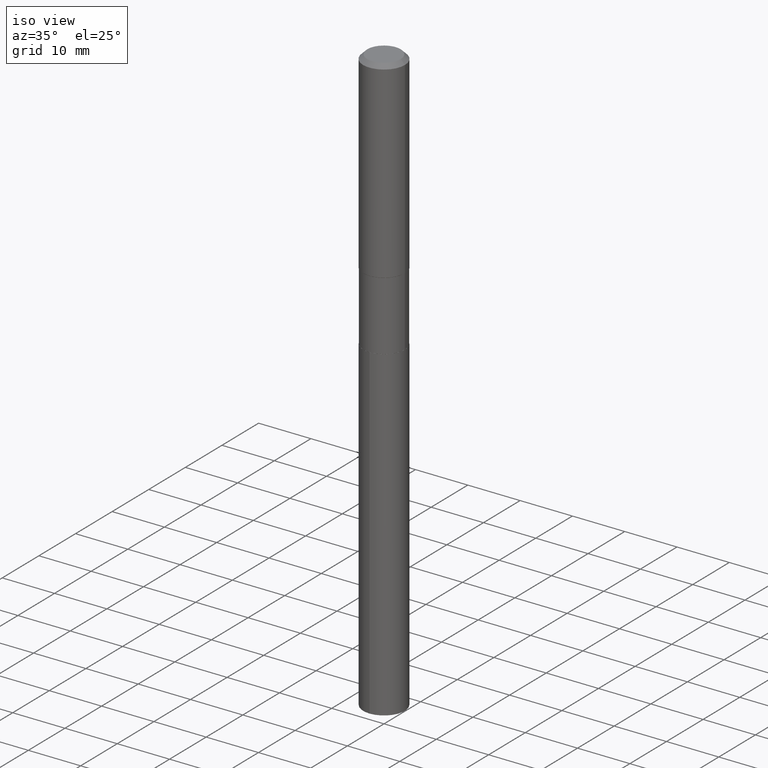
[diagram: clean part render]
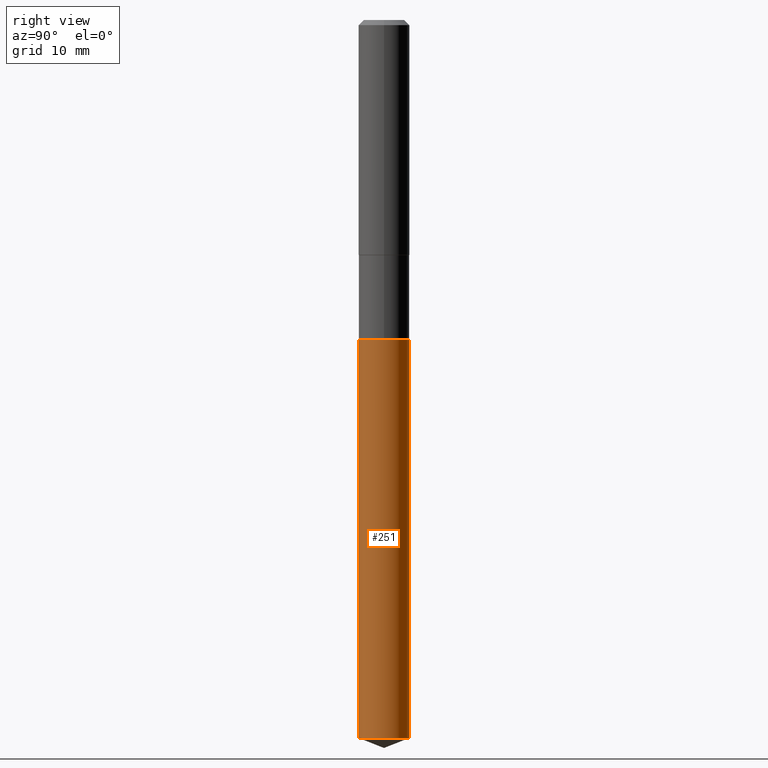
[diagram: tour spotlight — one face highlighted and labeled with its STEP entity id]
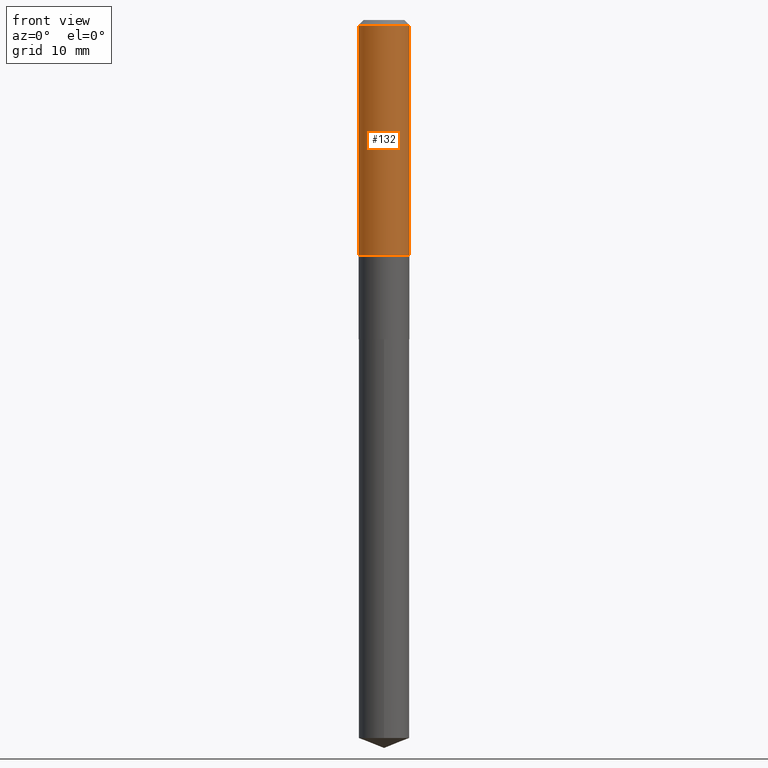
[diagram: tour spotlight — one face highlighted and labeled with its STEP entity id]
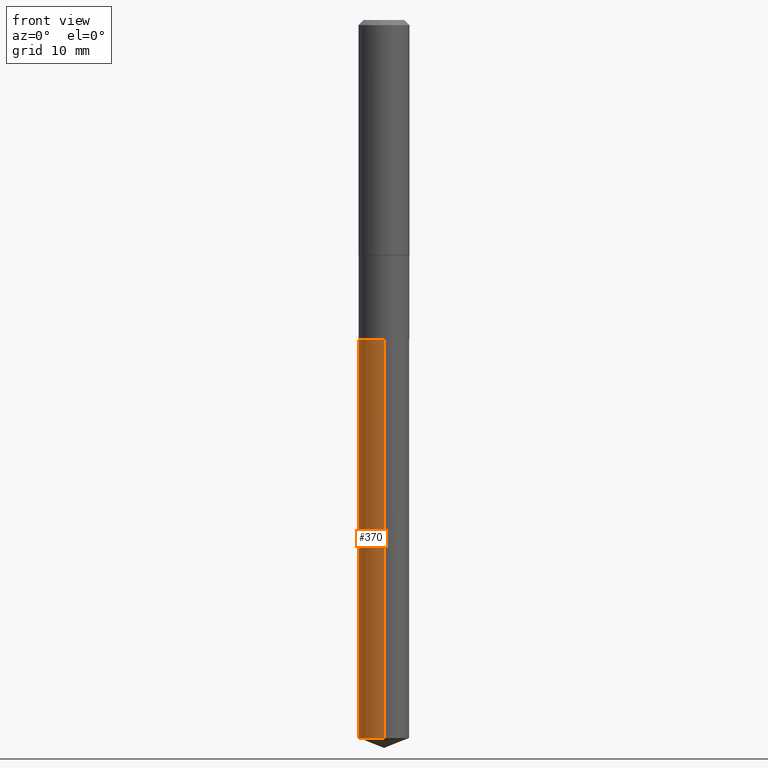
[diagram: tour spotlight — one face highlighted and labeled with its STEP entity id]
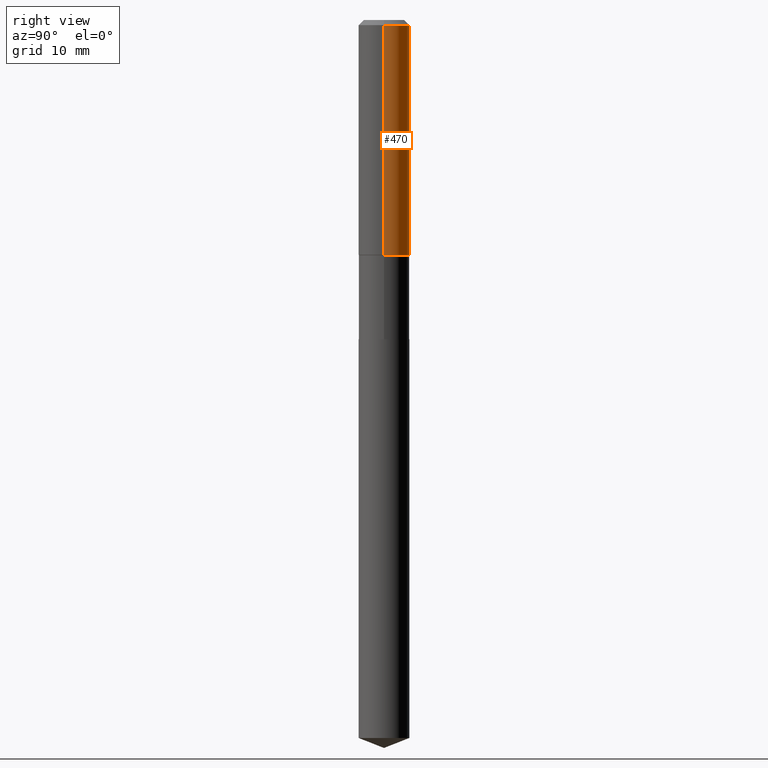
[diagram: tour spotlight — one face highlighted and labeled with its STEP entity id]
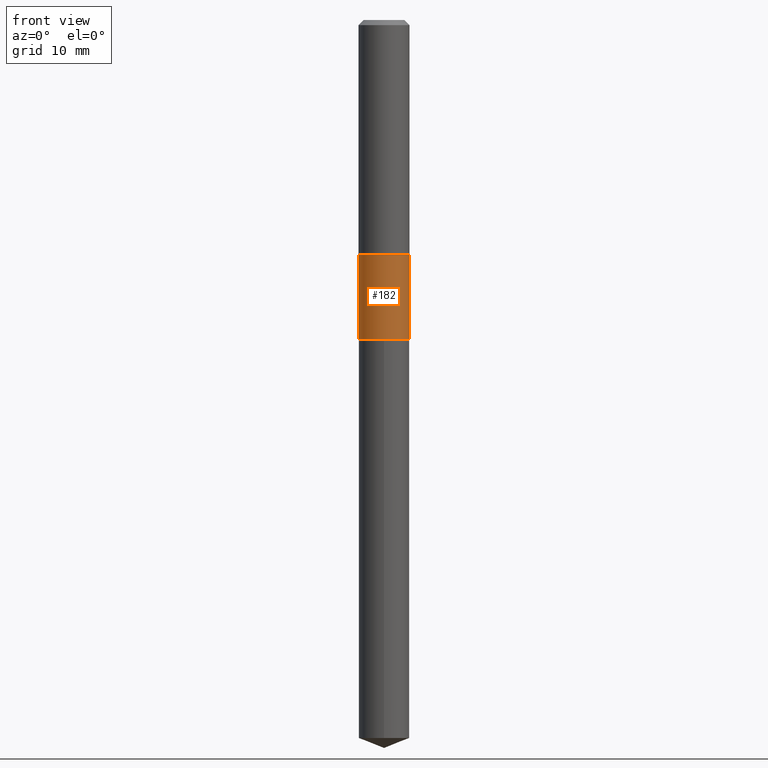
[diagram: tour spotlight — one face highlighted and labeled with its STEP entity id]
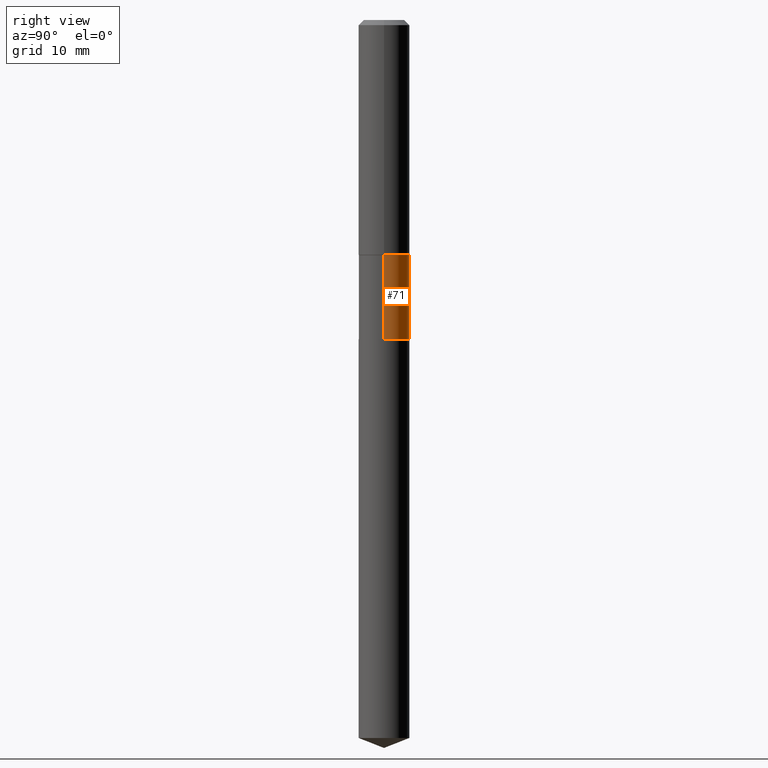
[diagram: tour spotlight — one face highlighted and labeled with its STEP entity id]
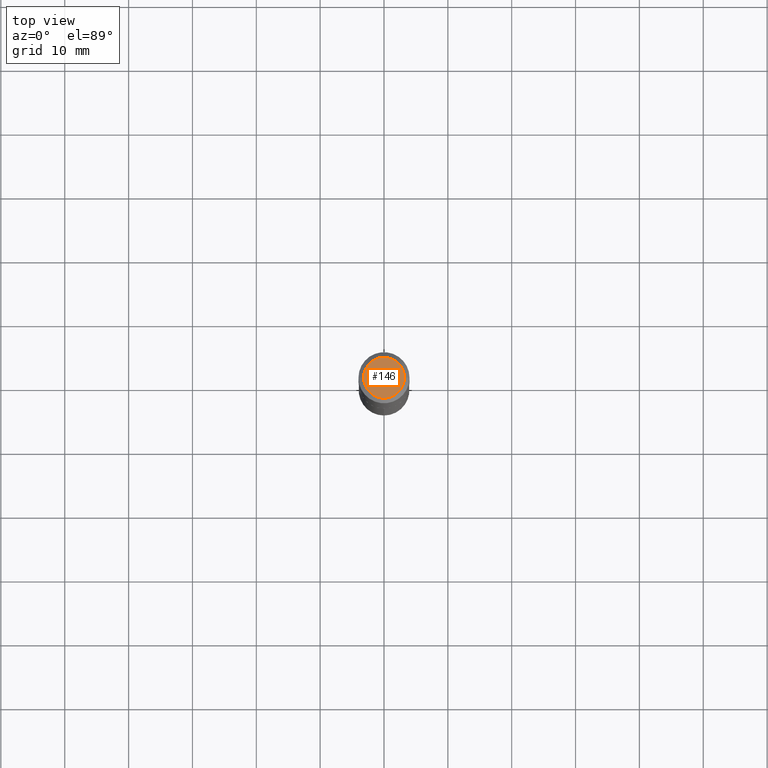
[diagram: tour spotlight — one face highlighted and labeled with its STEP entity id]
A machine part: a face-by-face anatomy tour. The part has 17 B-rep faces; the first image is the clean iso view, then the 7 largest visible faces are spotlighted one at a time (largest first), each with its STEP entity span.

Face 1 — right view, entity #251. In plain terms, the highlighted cylindrical surface (edge-blend (fillet) strip) has radius 3.9688 mm, axis along (-0, 0, 1).
Definition (entity closure, byte-faithful):
#30 = CARTESIAN_POINT ( 'NONE',  ( -1.091087918388430856E-15, -0.1562500000000068834, -1.968499999999999472 ) ) ;
#31 = EDGE_CURVE ( 'NONE', #268, #164, #279, .T. ) ;
#37 = CIRCLE ( 'NONE', #364, 0.1562500000000000000 ) ;
#60 = CARTESIAN_POINT ( 'NONE',  ( 1.110223024625264812E-15, 0.1562499999999845679, -4.426651488185166627 ) ) ;
#62 = DIRECTION ( 'NONE',  ( -2.445432706536183081E-29, 3.491533035595111543E-15, 1.000000000000000000 ) ) ;
#68 = CARTESIAN_POINT ( 'NONE',  ( 4.813905344975440714E-29, -6.872981015512730918E-15, -1.968499999999999694 ) ) ;
#69 = AXIS2_PLACEMENT_3D ( 'NONE', #68, #223, #275 ) ;
#79 = ORIENTED_EDGE ( 'NONE', *, *, #172, .T. ) ;
#85 = ORIENTED_EDGE ( 'NONE', *, *, #473, .T. ) ;
#93 = DIRECTION ( 'NONE',  ( -2.445432706536183362E-29, 3.491533035595111149E-15, 1.000000000000000000 ) ) ;
#98 = LINE ( 'NONE', #346, #145 ) ;
#113 = CARTESIAN_POINT ( 'NONE',  ( -1.091087918388370902E-15, -0.1562500000000154876, -4.426651488185164851 ) ) ;
#126 = EDGE_CURVE ( 'NONE', #164, #345, #293, .T. ) ;
#131 = VERTEX_POINT ( 'NONE', #60 ) ;
#138 = DIRECTION ( 'NONE',  ( -2.445432706536183081E-29, 3.491533035595111543E-15, 1.000000000000000000 ) ) ;
#142 = VECTOR ( 'NONE', #93, 39.37007874015748143 ) ;
#145 = VECTOR ( 'NONE', #427, 39.37007874015748143 ) ;
#149 = CARTESIAN_POINT ( 'NONE',  ( 1.110223024625265009E-15, 0.1562499999999931444, -1.968500000000000583 ) ) ;
#157 = EDGE_LOOP ( 'NONE', ( #79, #85, #325, #235 ) ) ;
#164 = VERTEX_POINT ( 'NONE', #30 ) ;
#172 = EDGE_CURVE ( 'NONE', #268, #131, #37, .T. ) ;
#214 = AXIS2_PLACEMENT_3D ( 'NONE', #397, #138, #367 ) ;
#223 = DIRECTION ( 'NONE',  ( -2.445432706536183081E-29, 3.491533035595111543E-15, 1.000000000000000000 ) ) ;
#235 = ORIENTED_EDGE ( 'NONE', *, *, #31, .F. ) ;
#246 = CARTESIAN_POINT ( 'NONE',  ( -1.091087918388430856E-15, -0.1562500000000068834, -1.968499999999999250 ) ) ;
#251 = ADVANCED_FACE ( 'NONE', ( #262 ), #405, .T. ) ;
#262 = FACE_OUTER_BOUND ( 'NONE', #157, .T. ) ;
#268 = VERTEX_POINT ( 'NONE', #113 ) ;
#275 = DIRECTION ( 'NONE',  ( -6.982962677686265133E-15, -1.000000000000000000, 3.496765431890256920E-15 ) ) ;
#279 = LINE ( 'NONE', #246, #142 ) ;
#293 = CIRCLE ( 'NONE', #214, 0.1562500000000000000 ) ;
#325 = ORIENTED_EDGE ( 'NONE', *, *, #126, .F. ) ;
#345 = VERTEX_POINT ( 'NONE', #149 ) ;
#346 = CARTESIAN_POINT ( 'NONE',  ( 1.110223024625204464E-15, 0.1562499999999931444, -1.968500000000000361 ) ) ;
#364 = AXIS2_PLACEMENT_3D ( 'NONE', #365, #62, #403 ) ;
#365 = CARTESIAN_POINT ( 'NONE',  ( 1.082514939180403819E-28, -1.545569814300852243E-14, -4.426651488185165739 ) ) ;
#367 = DIRECTION ( 'NONE',  ( -6.982962677686265133E-15, -1.000000000000000000, 3.496765431890256920E-15 ) ) ;
#397 = CARTESIAN_POINT ( 'NONE',  ( 4.813905344975441835E-29, -6.872981015512731707E-15, -1.968500000000000139 ) ) ;
#403 = DIRECTION ( 'NONE',  ( -6.982962677686265133E-15, -1.000000000000000000, 3.496765431890256920E-15 ) ) ;
#405 = CYLINDRICAL_SURFACE ( 'NONE', #69, 0.1562500000000000000 ) ;
#427 = DIRECTION ( 'NONE',  ( -2.445432706536183362E-29, 3.491533035595111149E-15, 1.000000000000000000 ) ) ;
#473 = EDGE_CURVE ( 'NONE', #131, #345, #98, .T. ) ;

Face 2 — front view, entity #132. In plain terms, the highlighted cylindrical surface (edge-blend (fillet) strip) has radius 4.0005 mm, axis along (-0, 0, 1).
Definition (entity closure, byte-faithful):
#5 = EDGE_LOOP ( 'NONE', ( #121, #352, #232, #468 ) ) ;
#10 = CARTESIAN_POINT ( 'NONE',  ( 0.1575000000000000844, -1.099816621735587677E-15, 7.679978421878603638E-30 ) ) ;
#42 = DIRECTION ( 'NONE',  ( 1.000000000000000000, -6.982962677686267499E-15, 0.000000000000000000 ) ) ;
#65 = DIRECTION ( 'NONE',  ( 1.000000000000000000, -6.982962677686267499E-15, 4.876176775795936353E-29 ) ) ;
#77 = CARTESIAN_POINT ( 'NONE',  ( -0.1575000000000000011, -1.463631224553587220E-15, -0.03150000000000019451 ) ) ;
#90 = VECTOR ( 'NONE', #396, 39.37007874015748143 ) ;
#102 = DIRECTION ( 'NONE',  ( -2.445468806185136597E-29, 3.491481338843145583E-15, 1.000000000000000000 ) ) ;
#112 = EDGE_CURVE ( 'NONE', #429, #320, #433, .T. ) ;
#121 = ORIENTED_EDGE ( 'NONE', *, *, #112, .F. ) ;
#132 = ADVANCED_FACE ( 'NONE', ( #213 ), #400, .T. ) ;
#144 = AXIS2_PLACEMENT_3D ( 'NONE', #221, #102, #65 ) ;
#147 = CARTESIAN_POINT ( 'NONE',  ( 0.1575000000000000011, -1.209798283909146741E-15, -0.03150000000000019451 ) ) ;
#156 = CARTESIAN_POINT ( 'NONE',  ( -0.1575000000000001676, -3.936385595755772191E-15, -1.447949999999999848 ) ) ;
#170 = VECTOR ( 'NONE', #395, 39.37007874015748143 ) ;
#192 = CIRCLE ( 'NONE', #487, 0.1575000000000000011 ) ;
#204 = LINE ( 'NONE', #10, #170 ) ;
#213 = FACE_OUTER_BOUND ( 'NONE', #5, .T. ) ;
#221 = CARTESIAN_POINT ( 'NONE',  ( 0.000000000000000000, 0.000000000000000000, 0.000000000000000000 ) ) ;
#232 = ORIENTED_EDGE ( 'NONE', *, *, #456, .T. ) ;
#234 = DIRECTION ( 'NONE',  ( -2.445468806185136597E-29, 3.491481338843145583E-15, 1.000000000000000000 ) ) ;
#238 = VERTEX_POINT ( 'NONE', #147 ) ;
#244 = EDGE_CURVE ( 'NONE', #320, #238, #192, .T. ) ;
#250 = CARTESIAN_POINT ( 'NONE',  ( -0.1575000000000000844, 1.119104808822158392E-15, -7.747322767151481189E-30 ) ) ;
#297 = DIRECTION ( 'NONE',  ( 1.000000000000000000, -6.982962677686265922E-15, 0.000000000000000000 ) ) ;
#302 = CIRCLE ( 'NONE', #418, 0.1575000000000001676 ) ;
#303 = VERTEX_POINT ( 'NONE', #377 ) ;
#307 = CARTESIAN_POINT ( 'NONE',  ( 3.540916557915768252E-29, -5.055490404577932161E-15, -1.447949999999999848 ) ) ;
#320 = VERTEX_POINT ( 'NONE', #77 ) ;
#330 = DIRECTION ( 'NONE',  ( -2.445468806185136597E-29, 3.491481338843145583E-15, 1.000000000000000000 ) ) ;
#333 = CARTESIAN_POINT ( 'NONE',  ( 7.703226739483226971E-31, -1.099816621735597538E-16, -0.03150000000000019451 ) ) ;
#352 = ORIENTED_EDGE ( 'NONE', *, *, #436, .T. ) ;
#377 = CARTESIAN_POINT ( 'NONE',  ( 0.1575000000000001676, -6.155307026313519641E-15, -1.447949999999999848 ) ) ;
#395 = DIRECTION ( 'NONE',  ( -2.445468806185136877E-29, 3.491481338843145188E-15, 1.000000000000000000 ) ) ;
#396 = DIRECTION ( 'NONE',  ( -2.445468806185136877E-29, 3.491481338843145188E-15, 1.000000000000000000 ) ) ;
#400 = CYLINDRICAL_SURFACE ( 'NONE', #144, 0.1575000000000000844 ) ;
#418 = AXIS2_PLACEMENT_3D ( 'NONE', #307, #234, #42 ) ;
#429 = VERTEX_POINT ( 'NONE', #156 ) ;
#433 = LINE ( 'NONE', #250, #90 ) ;
#436 = EDGE_CURVE ( 'NONE', #429, #303, #302, .T. ) ;
#456 = EDGE_CURVE ( 'NONE', #303, #238, #204, .T. ) ;
#468 = ORIENTED_EDGE ( 'NONE', *, *, #244, .F. ) ;
#487 = AXIS2_PLACEMENT_3D ( 'NONE', #333, #330, #297 ) ;

Face 3 — front view, entity #370. In plain terms, the highlighted cylindrical surface (edge-blend (fillet) strip) has radius 3.9688 mm, axis along (-0, 0, 1).
Definition (entity closure, byte-faithful):
#9 = ORIENTED_EDGE ( 'NONE', *, *, #473, .F. ) ;
#30 = CARTESIAN_POINT ( 'NONE',  ( -1.091087918388430856E-15, -0.1562500000000068834, -1.968499999999999472 ) ) ;
#31 = EDGE_CURVE ( 'NONE', #268, #164, #279, .T. ) ;
#33 = CARTESIAN_POINT ( 'NONE',  ( 4.813905344975440714E-29, -6.872981015512730918E-15, -1.968499999999999694 ) ) ;
#60 = CARTESIAN_POINT ( 'NONE',  ( 1.110223024625264812E-15, 0.1562499999999845679, -4.426651488185166627 ) ) ;
#82 = DIRECTION ( 'NONE',  ( -6.982962677686265133E-15, -1.000000000000000000, 3.496765431890256920E-15 ) ) ;
#87 = EDGE_LOOP ( 'NONE', ( #9, #419, #457, #337 ) ) ;
#93 = DIRECTION ( 'NONE',  ( -2.445432706536183362E-29, 3.491533035595111149E-15, 1.000000000000000000 ) ) ;
#98 = LINE ( 'NONE', #346, #145 ) ;
#113 = CARTESIAN_POINT ( 'NONE',  ( -1.091087918388370902E-15, -0.1562500000000154876, -4.426651488185164851 ) ) ;
#122 = CIRCLE ( 'NONE', #185, 0.1562500000000000000 ) ;
#123 = CARTESIAN_POINT ( 'NONE',  ( 1.082514939180403819E-28, -1.545569814300852243E-14, -4.426651488185165739 ) ) ;
#131 = VERTEX_POINT ( 'NONE', #60 ) ;
#142 = VECTOR ( 'NONE', #93, 39.37007874015748143 ) ;
#145 = VECTOR ( 'NONE', #427, 39.37007874015748143 ) ;
#149 = CARTESIAN_POINT ( 'NONE',  ( 1.110223024625265009E-15, 0.1562499999999931444, -1.968500000000000583 ) ) ;
#164 = VERTEX_POINT ( 'NONE', #30 ) ;
#185 = AXIS2_PLACEMENT_3D ( 'NONE', #123, #335, #483 ) ;
#187 = DIRECTION ( 'NONE',  ( -2.445432706536183081E-29, 3.491533035595111543E-15, 1.000000000000000000 ) ) ;
#193 = DIRECTION ( 'NONE',  ( -2.445432706536183081E-29, 3.491533035595111543E-15, 1.000000000000000000 ) ) ;
#240 = CIRCLE ( 'NONE', #463, 0.1562500000000000000 ) ;
#246 = CARTESIAN_POINT ( 'NONE',  ( -1.091087918388430856E-15, -0.1562500000000068834, -1.968499999999999250 ) ) ;
#258 = AXIS2_PLACEMENT_3D ( 'NONE', #33, #187, #82 ) ;
#268 = VERTEX_POINT ( 'NONE', #113 ) ;
#279 = LINE ( 'NONE', #246, #142 ) ;
#315 = EDGE_CURVE ( 'NONE', #345, #164, #240, .T. ) ;
#321 = EDGE_CURVE ( 'NONE', #131, #268, #122, .T. ) ;
#335 = DIRECTION ( 'NONE',  ( -2.445432706536183081E-29, 3.491533035595111543E-15, 1.000000000000000000 ) ) ;
#337 = ORIENTED_EDGE ( 'NONE', *, *, #315, .F. ) ;
#345 = VERTEX_POINT ( 'NONE', #149 ) ;
#346 = CARTESIAN_POINT ( 'NONE',  ( 1.110223024625204464E-15, 0.1562499999999931444, -1.968500000000000361 ) ) ;
#370 = ADVANCED_FACE ( 'NONE', ( #409 ), #451, .T. ) ;
#381 = CARTESIAN_POINT ( 'NONE',  ( 4.813905344975441835E-29, -6.872981015512731707E-15, -1.968500000000000139 ) ) ;
#409 = FACE_OUTER_BOUND ( 'NONE', #87, .T. ) ;
#419 = ORIENTED_EDGE ( 'NONE', *, *, #321, .T. ) ;
#427 = DIRECTION ( 'NONE',  ( -2.445432706536183362E-29, 3.491533035595111149E-15, 1.000000000000000000 ) ) ;
#451 = CYLINDRICAL_SURFACE ( 'NONE', #258, 0.1562500000000000000 ) ;
#455 = DIRECTION ( 'NONE',  ( -6.982962677686265133E-15, -1.000000000000000000, 3.496765431890256920E-15 ) ) ;
#457 = ORIENTED_EDGE ( 'NONE', *, *, #31, .T. ) ;
#463 = AXIS2_PLACEMENT_3D ( 'NONE', #381, #193, #455 ) ;
#473 = EDGE_CURVE ( 'NONE', #131, #345, #98, .T. ) ;
#483 = DIRECTION ( 'NONE',  ( -6.982962677686265133E-15, -1.000000000000000000, 3.496765431890256920E-15 ) ) ;

Face 4 — right view, entity #470. In plain terms, the highlighted cylindrical surface (edge-blend (fillet) strip) has radius 4.0005 mm, axis along (-0, 0, 1).
Definition (entity closure, byte-faithful):
#8 = CYLINDRICAL_SURFACE ( 'NONE', #56, 0.1575000000000000844 ) ;
#10 = CARTESIAN_POINT ( 'NONE',  ( 0.1575000000000000844, -1.099816621735587677E-15, 7.679978421878603638E-30 ) ) ;
#28 = DIRECTION ( 'NONE',  ( -2.445468806185136597E-29, 3.491481338843145583E-15, 1.000000000000000000 ) ) ;
#40 = EDGE_LOOP ( 'NONE', ( #201, #55, #168, #83 ) ) ;
#41 = EDGE_CURVE ( 'NONE', #238, #320, #481, .T. ) ;
#50 = CARTESIAN_POINT ( 'NONE',  ( 7.703226739483226971E-31, -1.099816621735597538E-16, -0.03150000000000019451 ) ) ;
#55 = ORIENTED_EDGE ( 'NONE', *, *, #112, .T. ) ;
#56 = AXIS2_PLACEMENT_3D ( 'NONE', #286, #319, #353 ) ;
#77 = CARTESIAN_POINT ( 'NONE',  ( -0.1575000000000000011, -1.463631224553587220E-15, -0.03150000000000019451 ) ) ;
#83 = ORIENTED_EDGE ( 'NONE', *, *, #456, .F. ) ;
#90 = VECTOR ( 'NONE', #396, 39.37007874015748143 ) ;
#103 = DIRECTION ( 'NONE',  ( 1.000000000000000000, -6.982962677686267499E-15, 0.000000000000000000 ) ) ;
#112 = EDGE_CURVE ( 'NONE', #429, #320, #433, .T. ) ;
#143 = CARTESIAN_POINT ( 'NONE',  ( 3.540916557915768252E-29, -5.055490404577932161E-15, -1.447949999999999848 ) ) ;
#147 = CARTESIAN_POINT ( 'NONE',  ( 0.1575000000000000011, -1.209798283909146741E-15, -0.03150000000000019451 ) ) ;
#156 = CARTESIAN_POINT ( 'NONE',  ( -0.1575000000000001676, -3.936385595755772191E-15, -1.447949999999999848 ) ) ;
#168 = ORIENTED_EDGE ( 'NONE', *, *, #41, .F. ) ;
#170 = VECTOR ( 'NONE', #395, 39.37007874015748143 ) ;
#174 = DIRECTION ( 'NONE',  ( -2.445468806185136597E-29, 3.491481338843145583E-15, 1.000000000000000000 ) ) ;
#198 = FACE_OUTER_BOUND ( 'NONE', #40, .T. ) ;
#201 = ORIENTED_EDGE ( 'NONE', *, *, #211, .T. ) ;
#204 = LINE ( 'NONE', #10, #170 ) ;
#211 = EDGE_CURVE ( 'NONE', #303, #429, #280, .T. ) ;
#222 = AXIS2_PLACEMENT_3D ( 'NONE', #143, #28, #103 ) ;
#238 = VERTEX_POINT ( 'NONE', #147 ) ;
#250 = CARTESIAN_POINT ( 'NONE',  ( -0.1575000000000000844, 1.119104808822158392E-15, -7.747322767151481189E-30 ) ) ;
#280 = CIRCLE ( 'NONE', #222, 0.1575000000000001676 ) ;
#286 = CARTESIAN_POINT ( 'NONE',  ( 0.000000000000000000, 0.000000000000000000, 0.000000000000000000 ) ) ;
#303 = VERTEX_POINT ( 'NONE', #377 ) ;
#319 = DIRECTION ( 'NONE',  ( -2.445468806185136597E-29, 3.491481338843145583E-15, 1.000000000000000000 ) ) ;
#320 = VERTEX_POINT ( 'NONE', #77 ) ;
#353 = DIRECTION ( 'NONE',  ( 1.000000000000000000, -6.982962677686267499E-15, 4.876176775795936353E-29 ) ) ;
#377 = CARTESIAN_POINT ( 'NONE',  ( 0.1575000000000001676, -6.155307026313519641E-15, -1.447949999999999848 ) ) ;
#391 = DIRECTION ( 'NONE',  ( 1.000000000000000000, -6.982962677686265922E-15, 0.000000000000000000 ) ) ;
#395 = DIRECTION ( 'NONE',  ( -2.445468806185136877E-29, 3.491481338843145188E-15, 1.000000000000000000 ) ) ;
#396 = DIRECTION ( 'NONE',  ( -2.445468806185136877E-29, 3.491481338843145188E-15, 1.000000000000000000 ) ) ;
#415 = AXIS2_PLACEMENT_3D ( 'NONE', #50, #174, #391 ) ;
#429 = VERTEX_POINT ( 'NONE', #156 ) ;
#433 = LINE ( 'NONE', #250, #90 ) ;
#456 = EDGE_CURVE ( 'NONE', #303, #238, #204, .T. ) ;
#470 = ADVANCED_FACE ( 'NONE', ( #198 ), #8, .T. ) ;
#481 = CIRCLE ( 'NONE', #415, 0.1575000000000000011 ) ;

Face 5 — front view, entity #182. In plain terms, the highlighted cylindrical surface (edge-blend (fillet) strip) has radius 3.9687 mm, axis along (-0, 0, 1).
Definition (entity closure, byte-faithful):
#3 = EDGE_CURVE ( 'NONE', #343, #348, #150, .T. ) ;
#13 = VERTEX_POINT ( 'NONE', #203 ) ;
#45 = ORIENTED_EDGE ( 'NONE', *, *, #448, .T. ) ;
#46 = VECTOR ( 'NONE', #267, 39.37007874015748143 ) ;
#49 = DIRECTION ( 'NONE',  ( -2.445468806185136597E-29, 3.491481338843145583E-15, 1.000000000000000000 ) ) ;
#73 = ORIENTED_EDGE ( 'NONE', *, *, #306, .T. ) ;
#115 = CARTESIAN_POINT ( 'NONE',  ( 0.1562499999999999722, -1.091087918388478976E-15, 7.619026212181148976E-30 ) ) ;
#127 = DIRECTION ( 'NONE',  ( 1.000000000000000000, -6.982962677686265133E-15, 0.000000000000000000 ) ) ;
#139 = CARTESIAN_POINT ( 'NONE',  ( 0.000000000000000000, 0.000000000000000000, 0.000000000000000000 ) ) ;
#148 = CARTESIAN_POINT ( 'NONE',  ( -0.1562499999999999445, -4.855321990922242113E-15, -1.449200000000000044 ) ) ;
#150 = CIRCLE ( 'NONE', #190, 0.1562499999999999445 ) ;
#166 = CARTESIAN_POINT ( 'NONE',  ( 3.543973393923499695E-29, -5.059854756251485526E-15, -1.449200000000000044 ) ) ;
#182 = ADVANCED_FACE ( 'NONE', ( #290 ), #476, .T. ) ;
#190 = AXIS2_PLACEMENT_3D ( 'NONE', #166, #460, #127 ) ;
#196 = VERTEX_POINT ( 'NONE', #437 ) ;
#203 = CARTESIAN_POINT ( 'NONE',  ( -0.1562500000000000000, -4.855321990922240535E-15, -1.968000000000000194 ) ) ;
#217 = DIRECTION ( 'NONE',  ( -2.445468806185136597E-29, 3.491481338843145583E-15, 1.000000000000000000 ) ) ;
#241 = CIRCLE ( 'NONE', #440, 0.1562500000000000000 ) ;
#245 = CARTESIAN_POINT ( 'NONE',  ( 4.812682610572349594E-29, -6.871235274843310993E-15, -1.968000000000000194 ) ) ;
#257 = EDGE_CURVE ( 'NONE', #13, #343, #336, .T. ) ;
#267 = DIRECTION ( 'NONE',  ( -2.445468806185136877E-29, 3.491481338843145188E-15, 1.000000000000000000 ) ) ;
#276 = ORIENTED_EDGE ( 'NONE', *, *, #3, .F. ) ;
#290 = FACE_OUTER_BOUND ( 'NONE', #486, .T. ) ;
#298 = CARTESIAN_POINT ( 'NONE',  ( 0.1562499999999999445, -6.150942674639964699E-15, -1.449200000000000044 ) ) ;
#305 = ORIENTED_EDGE ( 'NONE', *, *, #257, .F. ) ;
#306 = EDGE_CURVE ( 'NONE', #196, #348, #309, .T. ) ;
#309 = LINE ( 'NONE', #115, #46 ) ;
#317 = AXIS2_PLACEMENT_3D ( 'NONE', #139, #217, #480 ) ;
#336 = LINE ( 'NONE', #344, #347 ) ;
#343 = VERTEX_POINT ( 'NONE', #148 ) ;
#344 = CARTESIAN_POINT ( 'NONE',  ( -0.1562499999999999722, 1.110223024625156343E-15, -7.685836078523288357E-30 ) ) ;
#347 = VECTOR ( 'NONE', #374, 39.37007874015748143 ) ;
#348 = VERTEX_POINT ( 'NONE', #298 ) ;
#350 = DIRECTION ( 'NONE',  ( 1.000000000000000000, -6.982962677686269077E-15, 0.000000000000000000 ) ) ;
#374 = DIRECTION ( 'NONE',  ( -2.445468806185136877E-29, 3.491481338843145188E-15, 1.000000000000000000 ) ) ;
#437 = CARTESIAN_POINT ( 'NONE',  ( 0.1562500000000000000, -7.962323193231790955E-15, -1.968000000000000194 ) ) ;
#440 = AXIS2_PLACEMENT_3D ( 'NONE', #245, #49, #350 ) ;
#448 = EDGE_CURVE ( 'NONE', #13, #196, #241, .T. ) ;
#460 = DIRECTION ( 'NONE',  ( -2.445468806185136597E-29, 3.491481338843145583E-15, 1.000000000000000000 ) ) ;
#476 = CYLINDRICAL_SURFACE ( 'NONE', #317, 0.1562499999999999722 ) ;
#480 = DIRECTION ( 'NONE',  ( 1.000000000000000000, -6.982962677686266711E-15, 4.876176775795936353E-29 ) ) ;
#486 = EDGE_LOOP ( 'NONE', ( #305, #45, #73, #276 ) ) ;

Face 6 — right view, entity #71. In plain terms, the highlighted cylindrical surface (edge-blend (fillet) strip) has radius 3.9687 mm, axis along (-0, 0, 1).
Definition (entity closure, byte-faithful):
#4 = DIRECTION ( 'NONE',  ( -2.445468806185136597E-29, 3.491481338843145583E-15, 1.000000000000000000 ) ) ;
#13 = VERTEX_POINT ( 'NONE', #203 ) ;
#14 = AXIS2_PLACEMENT_3D ( 'NONE', #431, #248, #393 ) ;
#46 = VECTOR ( 'NONE', #267, 39.37007874015748143 ) ;
#71 = ADVANCED_FACE ( 'NONE', ( #323 ), #125, .T. ) ;
#109 = DIRECTION ( 'NONE',  ( 1.000000000000000000, -6.982962677686269077E-15, 0.000000000000000000 ) ) ;
#115 = CARTESIAN_POINT ( 'NONE',  ( 0.1562499999999999722, -1.091087918388478976E-15, 7.619026212181148976E-30 ) ) ;
#125 = CYLINDRICAL_SURFACE ( 'NONE', #14, 0.1562499999999999722 ) ;
#148 = CARTESIAN_POINT ( 'NONE',  ( -0.1562499999999999445, -4.855321990922242113E-15, -1.449200000000000044 ) ) ;
#152 = AXIS2_PLACEMENT_3D ( 'NONE', #417, #4, #158 ) ;
#158 = DIRECTION ( 'NONE',  ( 1.000000000000000000, -6.982962677686265133E-15, 0.000000000000000000 ) ) ;
#178 = EDGE_CURVE ( 'NONE', #196, #13, #416, .T. ) ;
#196 = VERTEX_POINT ( 'NONE', #437 ) ;
#203 = CARTESIAN_POINT ( 'NONE',  ( -0.1562500000000000000, -4.855321990922240535E-15, -1.968000000000000194 ) ) ;
#248 = DIRECTION ( 'NONE',  ( -2.445468806185136597E-29, 3.491481338843145583E-15, 1.000000000000000000 ) ) ;
#257 = EDGE_CURVE ( 'NONE', #13, #343, #336, .T. ) ;
#265 = ORIENTED_EDGE ( 'NONE', *, *, #178, .T. ) ;
#266 = EDGE_CURVE ( 'NONE', #348, #343, #475, .T. ) ;
#267 = DIRECTION ( 'NONE',  ( -2.445468806185136877E-29, 3.491481338843145188E-15, 1.000000000000000000 ) ) ;
#272 = ORIENTED_EDGE ( 'NONE', *, *, #257, .T. ) ;
#292 = CARTESIAN_POINT ( 'NONE',  ( 4.812682610572349594E-29, -6.871235274843310993E-15, -1.968000000000000194 ) ) ;
#298 = CARTESIAN_POINT ( 'NONE',  ( 0.1562499999999999445, -6.150942674639964699E-15, -1.449200000000000044 ) ) ;
#306 = EDGE_CURVE ( 'NONE', #196, #348, #309, .T. ) ;
#309 = LINE ( 'NONE', #115, #46 ) ;
#310 = EDGE_LOOP ( 'NONE', ( #265, #272, #464, #354 ) ) ;
#323 = FACE_OUTER_BOUND ( 'NONE', #310, .T. ) ;
#327 = DIRECTION ( 'NONE',  ( -2.445468806185136597E-29, 3.491481338843145583E-15, 1.000000000000000000 ) ) ;
#331 = AXIS2_PLACEMENT_3D ( 'NONE', #292, #327, #109 ) ;
#336 = LINE ( 'NONE', #344, #347 ) ;
#343 = VERTEX_POINT ( 'NONE', #148 ) ;
#344 = CARTESIAN_POINT ( 'NONE',  ( -0.1562499999999999722, 1.110223024625156343E-15, -7.685836078523288357E-30 ) ) ;
#347 = VECTOR ( 'NONE', #374, 39.37007874015748143 ) ;
#348 = VERTEX_POINT ( 'NONE', #298 ) ;
#354 = ORIENTED_EDGE ( 'NONE', *, *, #306, .F. ) ;
#374 = DIRECTION ( 'NONE',  ( -2.445468806185136877E-29, 3.491481338843145188E-15, 1.000000000000000000 ) ) ;
#393 = DIRECTION ( 'NONE',  ( 1.000000000000000000, -6.982962677686266711E-15, 4.876176775795936353E-29 ) ) ;
#416 = CIRCLE ( 'NONE', #331, 0.1562500000000000000 ) ;
#417 = CARTESIAN_POINT ( 'NONE',  ( 3.543973393923499695E-29, -5.059854756251485526E-15, -1.449200000000000044 ) ) ;
#431 = CARTESIAN_POINT ( 'NONE',  ( 0.000000000000000000, 0.000000000000000000, 0.000000000000000000 ) ) ;
#437 = CARTESIAN_POINT ( 'NONE',  ( 0.1562500000000000000, -7.962323193231790955E-15, -1.968000000000000194 ) ) ;
#464 = ORIENTED_EDGE ( 'NONE', *, *, #266, .F. ) ;
#475 = CIRCLE ( 'NONE', #152, 0.1562499999999999445 ) ;

Face 7 — top view, entity #146. In plain terms, the highlighted planar face has unit normal (0, -0, -1).
Definition (entity closure, byte-faithful):
#2 = VERTEX_POINT ( 'NONE', #388 ) ;
#26 = CARTESIAN_POINT ( 'NONE',  ( -4.719860820353100843E-47, 6.738710358733633822E-33, 1.930043355456229866E-18 ) ) ;
#29 = AXIS2_PLACEMENT_3D ( 'NONE', #26, #363, #111 ) ;
#39 = DIRECTION ( 'NONE',  ( -2.445468806185136597E-29, 3.491481338843145583E-15, 1.000000000000000000 ) ) ;
#67 = PLANE ( 'NONE',  #29 ) ;
#81 = CIRCLE ( 'NONE', #357, 0.1260000000000000009 ) ;
#111 = DIRECTION ( 'NONE',  ( -1.000000000000000000, 6.982962677686265922E-15, -4.876176775795935793E-29 ) ) ;
#140 = CARTESIAN_POINT ( 'NONE',  ( -0.1260000000000000009, 9.348441284752484904E-16, 3.860086710906114178E-18 ) ) ;
#146 = ADVANCED_FACE ( 'NONE', ( #435 ), #67, .F. ) ;
#163 = EDGE_CURVE ( 'NONE', #2, #239, #81, .T. ) ;
#195 = DIRECTION ( 'NONE',  ( 1.000000000000000000, -6.982962677686265922E-15, 4.876281427513067258E-29 ) ) ;
#231 = CARTESIAN_POINT ( 'NONE',  ( -9.439721640706201686E-47, 1.347742071746726764E-32, 3.860086710912459732E-18 ) ) ;
#239 = VERTEX_POINT ( 'NONE', #140 ) ;
#253 = DIRECTION ( 'NONE',  ( 1.000000000000000000, -6.982962677686265922E-15, 4.876281427513067258E-29 ) ) ;
#295 = DIRECTION ( 'NONE',  ( -2.445468806185136597E-29, 3.491481338843145583E-15, 1.000000000000000000 ) ) ;
#357 = AXIS2_PLACEMENT_3D ( 'NONE', #474, #295, #253 ) ;
#363 = DIRECTION ( 'NONE',  ( 2.438088387897960049E-29, -3.491481338843145188E-15, -1.000000000000000000 ) ) ;
#373 = ORIENTED_EDGE ( 'NONE', *, *, #404, .T. ) ;
#385 = EDGE_LOOP ( 'NONE', ( #373, #421 ) ) ;
#388 = CARTESIAN_POINT ( 'NONE',  ( 0.1260000000000000009, -1.027466422270894443E-15, 3.860086710919128072E-18 ) ) ;
#404 = EDGE_CURVE ( 'NONE', #239, #2, #488, .T. ) ;
#406 = AXIS2_PLACEMENT_3D ( 'NONE', #231, #39, #195 ) ;
#421 = ORIENTED_EDGE ( 'NONE', *, *, #163, .T. ) ;
#435 = FACE_OUTER_BOUND ( 'NONE', #385, .T. ) ;
#474 = CARTESIAN_POINT ( 'NONE',  ( -9.439721640706201686E-47, 1.347742071746726764E-32, 3.860086710912459732E-18 ) ) ;
#488 = CIRCLE ( 'NONE', #406, 0.1260000000000000009 ) ;